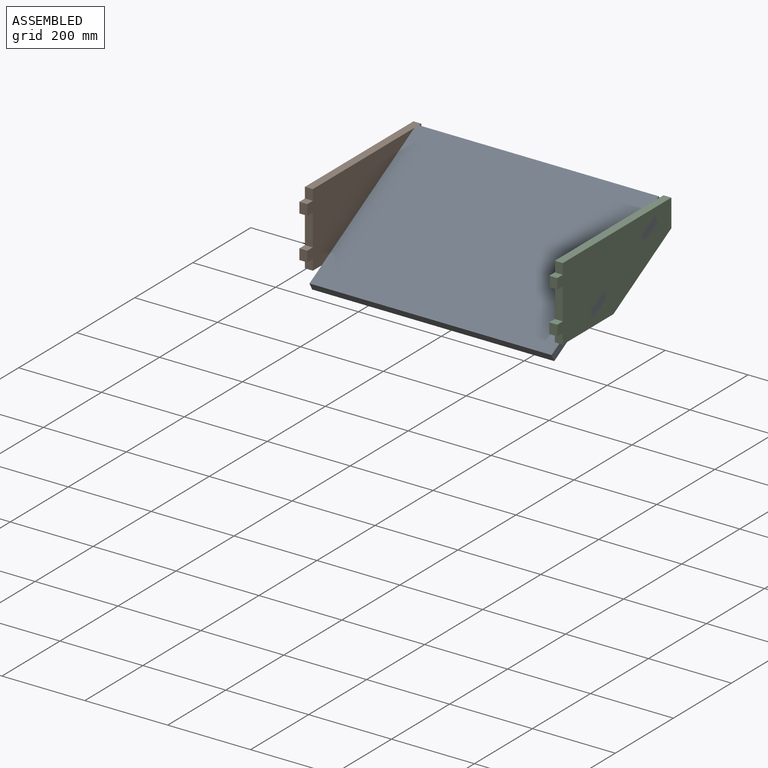
[diagram: assembled view]
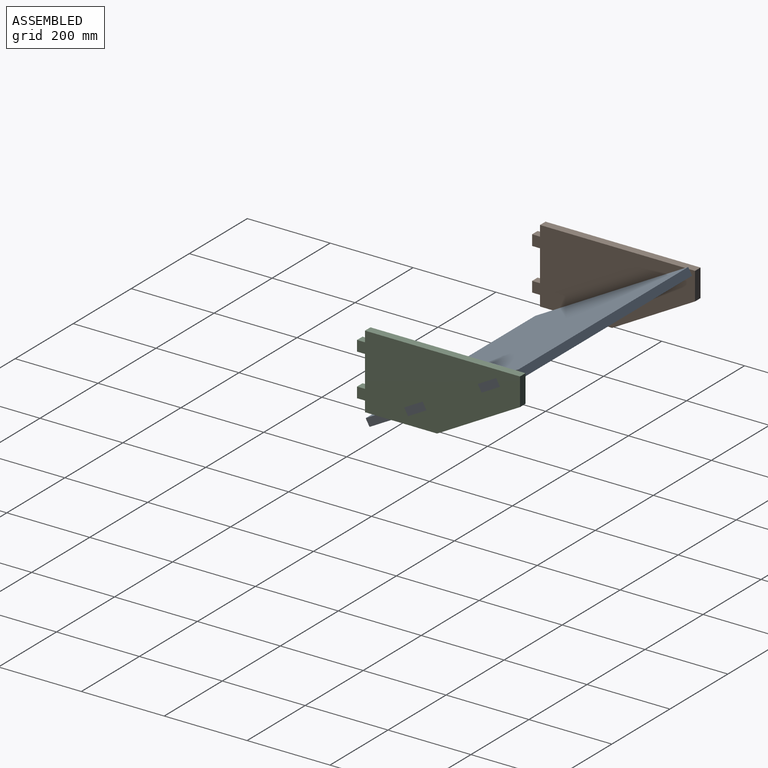
[diagram: assembled view, second angle]
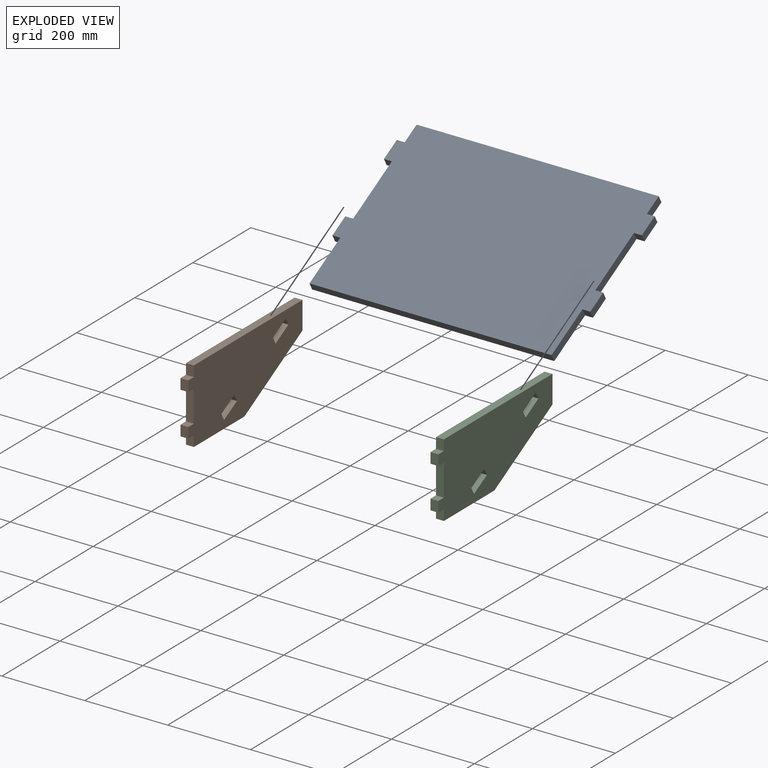
[diagram: exploded view]
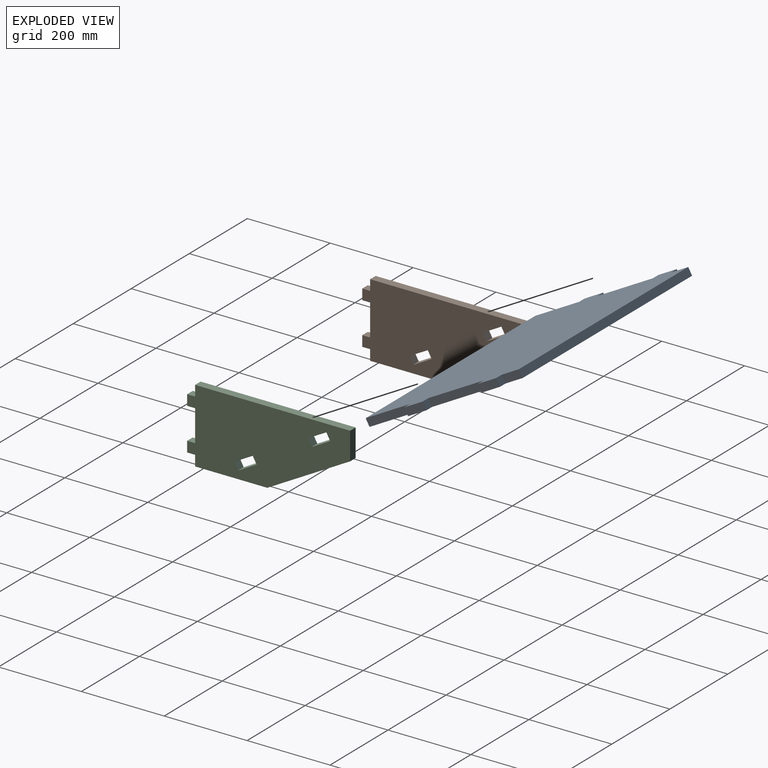
[diagram: exploded view, second angle]
ASSEMBLY  parts=3 mates=2
PART A: 22 faces, bbox 622.3x19.1x422.6 mm
  f0: plane 121.62x19.05mm, normal (1,0,0), area 2316.9mm2, adj f1,f19,f20,f21
  f1: plane 584.2x19.05mm, normal (0,0,1), area 11129mm2, adj f0,f2,f20,f21
  f2: plane 121.62x19.05mm, normal (-1,0,0), area 2316.9mm2, adj f1,f3,f20,f21
  f3: plane 19.05x19.05mm, normal (0,0,1), area 362.9mm2, adj f2,f4,f20,f21
  f4: plane 50.8x19.05mm, normal (-1,0,0), area 967.7mm2, adj f3,f5,f20,f21
  f5: plane 19.05x19.05mm, normal (0,0,-1), area 362.9mm2, adj f4,f6,f20,f21
  f6: plane 152.4x19.05mm, normal (-1,0,0), area 2903.2mm2, adj f5,f7,f20,f21
  f7: plane 19.05x19.05mm, normal (0,0,1), area 362.9mm2, adj f6,f8,f20,f21
  f8: plane 50.8x19.05mm, normal (-1,0,0), area 967.7mm2, adj f7,f9,f20,f21
  f9: plane 19.05x19.05mm, normal (0,0,-1), area 362.9mm2, adj f8,f10,f20,f21
  f10: plane 46.99x19.05mm, normal (-1,0,0), area 895.2mm2, adj f9,f11,f20,f21
  f11: plane 584.2x19.05mm, normal (0,0,-1), area 11129mm2, adj f10,f12,f20,f21
  f12: plane 46.99x19.05mm, normal (1,0,0), area 895.2mm2, adj f11,f13,f20,f21
  f13: plane 19.05x19.05mm, normal (0,0,-1), area 362.9mm2, adj f12,f14,f20,f21
  f14: plane 50.8x19.05mm, normal (1,0,0), area 967.7mm2, adj f13,f15,f20,f21
  f15: plane 19.05x19.05mm, normal (0,0,1), area 362.9mm2, adj f14,f16,f20,f21
  f16: plane 152.4x19.05mm, normal (1,0,0), area 2903.2mm2, adj f15,f17,f20,f21
  f17: plane 19.05x19.05mm, normal (0,0,-1), area 362.9mm2, adj f16,f18,f20,f21
  f18: plane 50.8x19.05mm, normal (1,0,0), area 967.7mm2, adj f17,f19,f20,f21
  f19: plane 19.05x19.05mm, normal (0,0,1), area 362.9mm2, adj f0,f18,f20,f21
  f20: plane 622.3x422.61mm, normal (0,-1,0), area 250761.4mm2, adj f0,f1,f2,f3,f4,f5,f6,f7
  f21: plane 622.3x422.61mm, normal (0,1,0), area 250761.4mm2, adj f0,f1,f2,f3,f4,f5,f6,f7
PART B: 23 faces, bbox 177.9x19.1x393.1 mm
  f0: plane 393.14x177.85mm, normal (0,-1,0), area 54458.1mm2, adj f2,f3,f4,f5,f6,f7,f8,f9
  f1: plane 393.14x177.85mm, normal (0,1,0), area 54458.1mm2, adj f2,f3,f4,f5,f6,f7,f8,f9
  f2: plane 76.25x19.05mm, normal (0,0,-1), area 1452.6mm2, adj f0,f1,f3,f14
  f3: plane 19.05x19.05mm, normal (-1,0,0), area 362.9mm2, adj f0,f1,f2,f4
  f4: plane 25.4x19.05mm, normal (0,0,-1), area 483.9mm2, adj f0,f1,f3,f5
  f5: plane 19.05x19.05mm, normal (1,0,0), area 362.9mm2, adj f0,f1,f4,f6
  f6: plane 25.4x19.05mm, normal (0,0,-1), area 483.9mm2, adj f0,f1,f5,f7
  f7: plane 174.24x19.05mm, normal (1,0,0), area 3319.3mm2, adj f0,f1,f6,f8
  f8: plane 199.85x111.15mm, normal (0.87,0,0.49), area 4356.3mm2, adj f0,f1,f7,f9
  f9: plane 66.7x19.05mm, normal (0,0,1), area 1270.6mm2, adj f0,f1,f8,f10
  f10: plane 374.09x19.05mm, normal (-1,0,0), area 7126.4mm2, adj f0,f1,f9,f11
  f11: plane 25.4x19.05mm, normal (0,0,-1), area 483.9mm2, adj f0,f1,f10,f12
  f12: plane 19.05x19.05mm, normal (-1,0,0), area 362.9mm2, adj f0,f1,f11,f13
  f13: plane 25.4x19.05mm, normal (0,0,-1), area 483.9mm2, adj f0,f1,f12,f14
  f14: plane 19.05x19.05mm, normal (1,0,0), area 362.9mm2, adj f0,f1,f2,f13
  f15: plane 19.05x16.65mm, normal (-0.49,0,0.87), area 362.9mm2, adj f0,f1,f16,f18
  f16: plane 44.4x24.69mm, normal (-0.87,0,-0.49), area 967.7mm2, adj f0,f1,f15,f17
  f17: plane 19.05x16.65mm, normal (0.49,0,-0.87), area 362.9mm2, adj f0,f1,f16,f18
  f18: plane 44.4x24.69mm, normal (0.87,0,0.49), area 967.7mm2, adj f0,f1,f15,f17
  f19: plane 19.05x16.65mm, normal (0.49,0,-0.87), area 362.9mm2, adj f0,f1,f20,f22
  f20: plane 44.4x24.69mm, normal (0.87,0,0.49), area 967.7mm2, adj f0,f1,f19,f21
  f21: plane 19.05x16.65mm, normal (-0.49,0,0.87), area 362.9mm2, adj f0,f1,f20,f22
  f22: plane 44.4x24.69mm, normal (-0.87,0,-0.49), area 967.7mm2, adj f0,f1,f19,f21
PART C: same geometry as B
PLACE A rot(axis=(0,-0.86,0.51),180deg) t=(-107.48,369.42,-26.61)mm
PLACE B rot(axis=(-0.58,0.58,0.58),120deg) t=(-710.73,186.88,-98.59)mm
PLACE C rot(axis=(-0.58,0.58,0.58),120deg) t=(-107.48,186.88,-98.59)mm
MATE slider B.f19 <-> A.f13  axis (0,-0.87,-0.49) through (-701.21,323.72,-41.12)mm
MATE fastened A.f9 <-> C.f19  axis (0,0.87,0.49) through (-97.96,323.72,-41.12)mm
